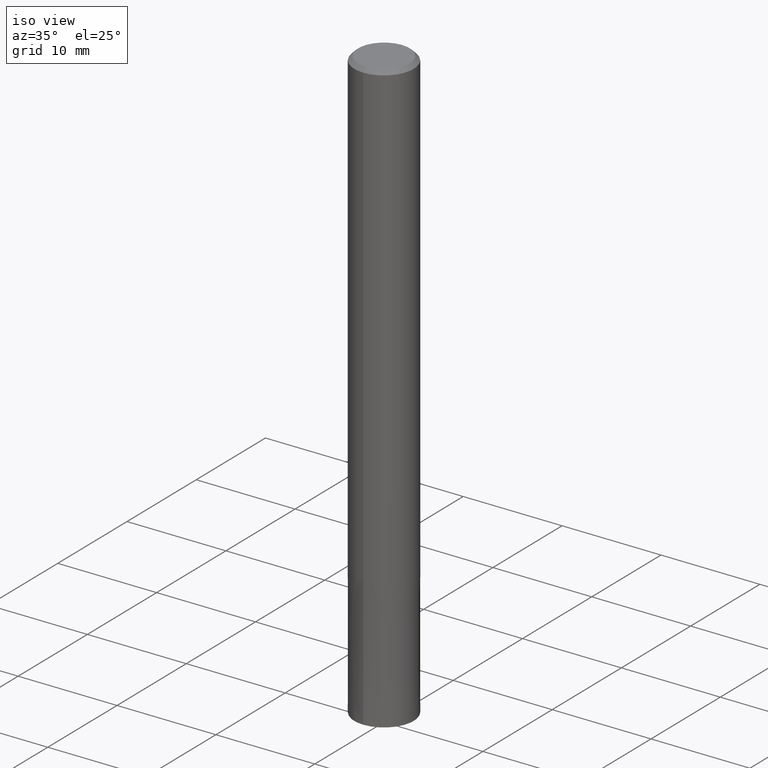
[diagram: clean part render]
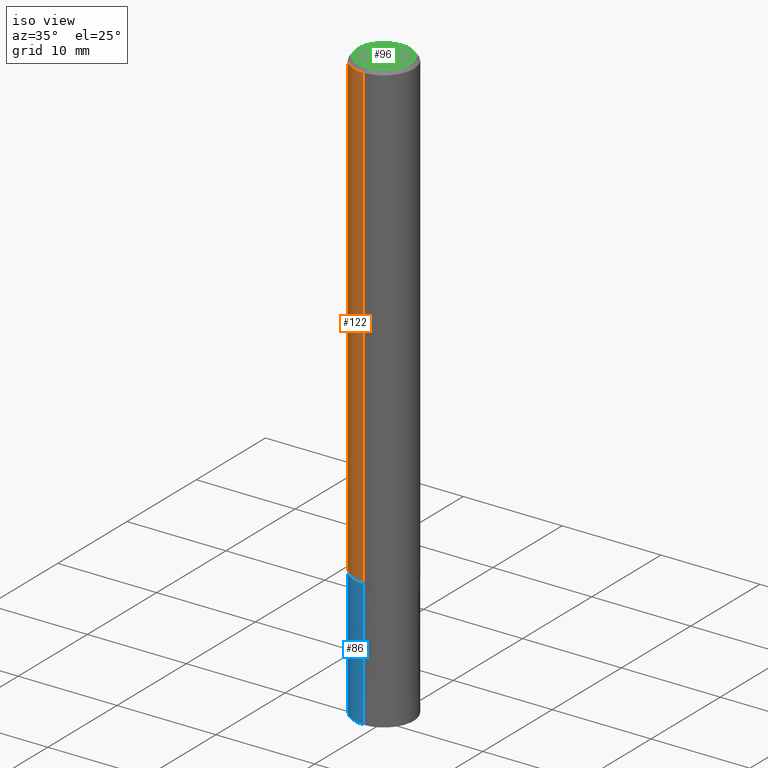
[diagram: same view with three faces highlighted in distinct colors, each labeled with its STEP entity id]
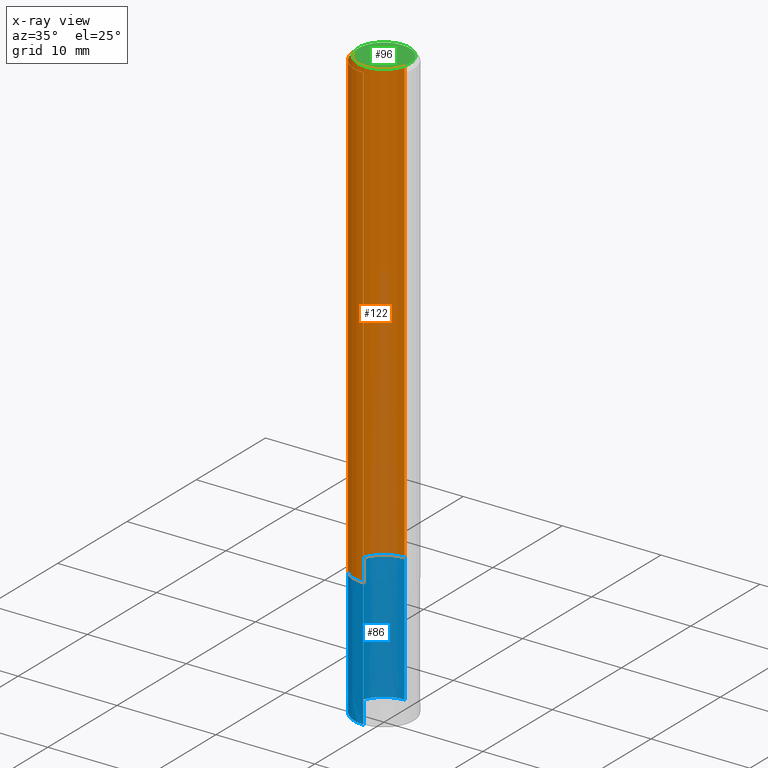
[diagram: x-ray of the same camera — body ghosted, the three highlighted faces saturated]
A machine part, iso view with three faces highlighted in distinct colors.
The next image is the same camera in x-ray (body ghosted, the three faces saturated) — at least one of them is partly hidden behind the body in this view.
Their STEP definitions:

[orange] entity #122 — the highlighted cylindrical surface (edge-blend (fillet) strip) has radius 3 mm, axis along (-0, -0, 1).
#64=EDGE_CURVE('',#82,#70,#152,.T.);
#70=VERTEX_POINT('',#159);
#80=EDGE_CURVE('',#116,#128,#170,.T.);
#82=VERTEX_POINT('',#172);
#104=EDGE_CURVE('',#116,#82,#197,.T.);
#114=EDGE_CURVE('',#70,#128,#208,.T.);
#116=VERTEX_POINT('',#210);
#122=ADVANCED_FACE('',(#216),#217,.T.);
#128=VERTEX_POINT('',#226);
#152=CIRCLE('',#242,3.0);
#159=CARTESIAN_POINT('',(0.0,3.0,-0.399999999999999));
#170=CIRCLE('',#264,3.0);
#172=CARTESIAN_POINT('',(3.67381906146713E-016,-3.0,-0.399999999999999));
#197=LINE('',#297,#298);
#208=LINE('',#313,#314);
#210=CARTESIAN_POINT('',(3.67381906146713E-016,-3.0,-47.0));
#216=FACE_OUTER_BOUND('',#324,.T.);
#217=CYLINDRICAL_SURFACE('',#325,3.0);
#226=CARTESIAN_POINT('',(0.0,3.0,-47.0));
#242=AXIS2_PLACEMENT_3D('',#342,#343,#344);
#264=AXIS2_PLACEMENT_3D('',#368,#369,#370);
#297=CARTESIAN_POINT('',(3.67381906146713E-016,-3.0,-23.7));
#298=VECTOR('',#397,1.0);
#313=CARTESIAN_POINT('',(-3.67381906146713E-016,3.0,-23.7));
#314=VECTOR('',#410,1.0);
#324=EDGE_LOOP('',(#418,#419,#420,#421));
#325=AXIS2_PLACEMENT_3D('',#422,#423,#424);
#342=CARTESIAN_POINT('',(0.0,0.0,-0.399999999999999));
#343=DIRECTION('',(0.0,0.0,-1.0));
#344=DIRECTION('',(0.0,1.0,0.0));
#368=CARTESIAN_POINT('',(0.0,0.0,-47.0));
#369=DIRECTION('',(0.0,0.0,-1.0));
#370=DIRECTION('',(0.0,1.0,0.0));
#397=DIRECTION('',(-0.0,-0.0,1.0));
#410=DIRECTION('',(0.0,0.0,-1.0));
#418=ORIENTED_EDGE('',*,*,#114,.T.);
#419=ORIENTED_EDGE('',*,*,#80,.F.);
#420=ORIENTED_EDGE('',*,*,#104,.T.);
#421=ORIENTED_EDGE('',*,*,#64,.T.);
#422=CARTESIAN_POINT('',(0.0,0.0,-23.7));
#423=DIRECTION('',(-0.0,-0.0,1.0));
#424=DIRECTION('',(0.0,1.0,0.0));

[blue] entity #86 — the highlighted conical surface has half-angle 0 deg.
#78=VERTEX_POINT('',#168);
#84=EDGE_CURVE('',#78,#98,#174,.T.);
#86=ADVANCED_FACE('',(#176),#177,.T.);
#88=EDGE_CURVE('',#92,#108,#179,.T.);
#92=VERTEX_POINT('',#183);
#98=VERTEX_POINT('',#191);
#106=EDGE_CURVE('',#92,#98,#199,.T.);
#108=VERTEX_POINT('',#201);
#130=EDGE_CURVE('',#108,#78,#228,.T.);
#168=CARTESIAN_POINT('',(0.0,2.9999,-47.0));
#174=LINE('',#269,#270);
#176=FACE_OUTER_BOUND('',#272,.T.);
#177=CONICAL_SURFACE('',#273,2.99995,7.6923076921722E-006);
#179=LINE('',#276,#277);
#183=CARTESIAN_POINT('',(3.67381906146713E-016,-3.0,-60.0));
#191=CARTESIAN_POINT('',(0.0,3.0,-60.0));
#199=CIRCLE('',#301,3.0);
#201=CARTESIAN_POINT('',(3.67369660083175E-016,-2.9999,-47.0));
#228=CIRCLE('',#337,2.9999);
#269=CARTESIAN_POINT('',(-3.67375783114944E-016,2.99995,-53.5));
#270=VECTOR('',#371,1.0);
#272=EDGE_LOOP('',(#373,#374,#375,#376));
#273=AXIS2_PLACEMENT_3D('',#377,#378,#379);
#276=CARTESIAN_POINT('',(3.67375783114944E-016,-2.99995,-53.5));
#277=VECTOR('',#380,1.0);
#301=AXIS2_PLACEMENT_3D('',#398,#399,#400);
#337=AXIS2_PLACEMENT_3D('',#441,#442,#443);
#371=DIRECTION('',(-9.42004887529793E-022,7.69230769209634E-006,-0.999999999970414));
#373=ORIENTED_EDGE('',*,*,#84,.T.);
#374=ORIENTED_EDGE('',*,*,#106,.F.);
#375=ORIENTED_EDGE('',*,*,#88,.T.);
#376=ORIENTED_EDGE('',*,*,#130,.T.);
#377=CARTESIAN_POINT('',(0.0,0.0,-53.5));
#378=DIRECTION('',(0.0,-0.0,-1.0));
#379=DIRECTION('',(0.0,1.0,0.0));
#380=DIRECTION('',(-9.42004887529793E-022,7.69230769209634E-006,0.999999999970414));
#398=CARTESIAN_POINT('',(0.0,0.0,-60.0));
#399=DIRECTION('',(0.0,0.0,-1.0));
#400=DIRECTION('',(0.0,1.0,0.0));
#441=CARTESIAN_POINT('',(0.0,0.0,-47.0));
#442=DIRECTION('',(0.0,0.0,-1.0));
#443=DIRECTION('',(0.0,1.0,0.0));

[green] entity #96 — the highlighted planar face has unit normal (-0, 0, 1).
#60=VERTEX_POINT('',#148);
#62=EDGE_CURVE('',#102,#60,#150,.T.);
#72=EDGE_CURVE('',#60,#102,#161,.T.);
#96=ADVANCED_FACE('',(#188),#189,.T.);
#102=VERTEX_POINT('',#195);
#148=CARTESIAN_POINT('',(0.0,2.6,0.0));
#150=CIRCLE('',#239,2.6);
#161=CIRCLE('',#253,2.6);
#188=FACE_OUTER_BOUND('',#285,.T.);
#189=PLANE('',#286);
#195=CARTESIAN_POINT('',(3.18397651993818E-016,-2.6,0.0));
#239=AXIS2_PLACEMENT_3D('',#339,#340,#341);
#253=AXIS2_PLACEMENT_3D('',#354,#355,#356);
#285=EDGE_LOOP('',(#391,#392));
#286=AXIS2_PLACEMENT_3D('',#393,#394,#395);
#339=CARTESIAN_POINT('',(0.0,0.0,0.0));
#340=DIRECTION('',(0.0,0.0,-1.0));
#341=DIRECTION('',(0.0,1.0,0.0));
#354=CARTESIAN_POINT('',(0.0,0.0,0.0));
#355=DIRECTION('',(0.0,0.0,-1.0));
#356=DIRECTION('',(0.0,1.0,0.0));
#391=ORIENTED_EDGE('',*,*,#72,.F.);
#392=ORIENTED_EDGE('',*,*,#62,.F.);
#393=CARTESIAN_POINT('',(0.0,1.3,0.0));
#394=DIRECTION('',(-0.0,0.0,1.0));
#395=DIRECTION('',(0.0,-1.0,0.0));